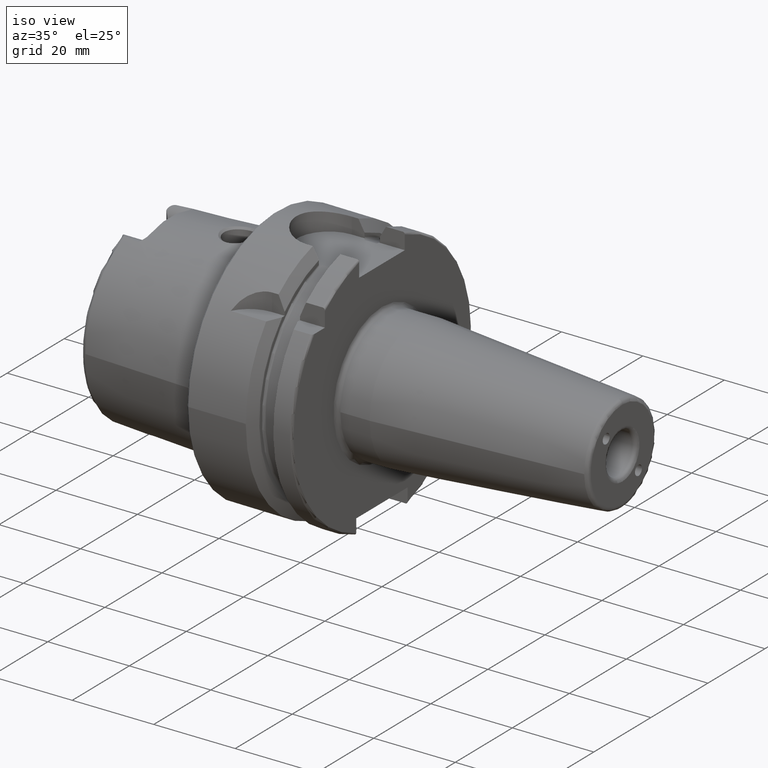
[diagram: clean part render]
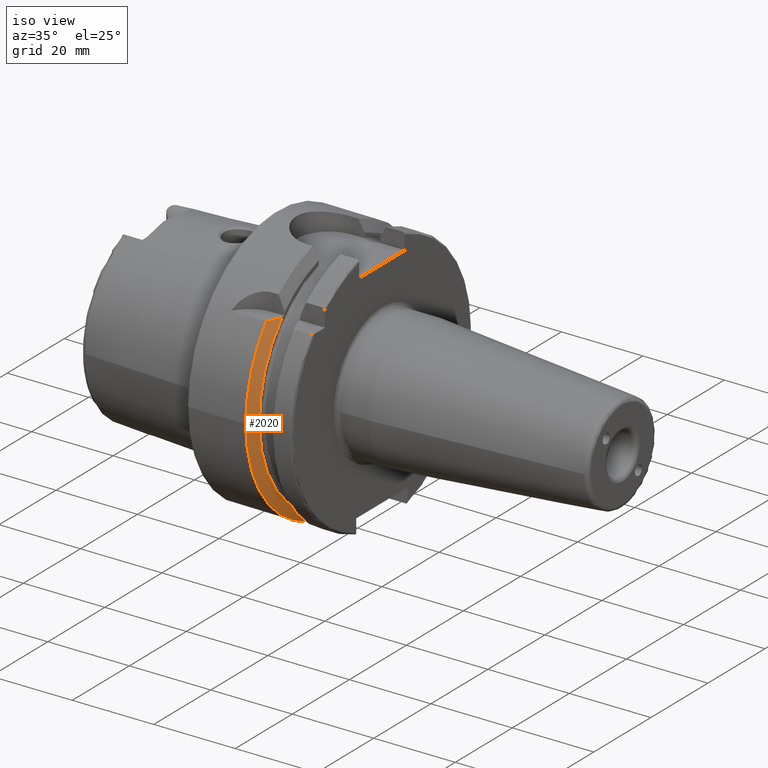
[diagram: same view with one face highlighted and labeled with its STEP entity id]
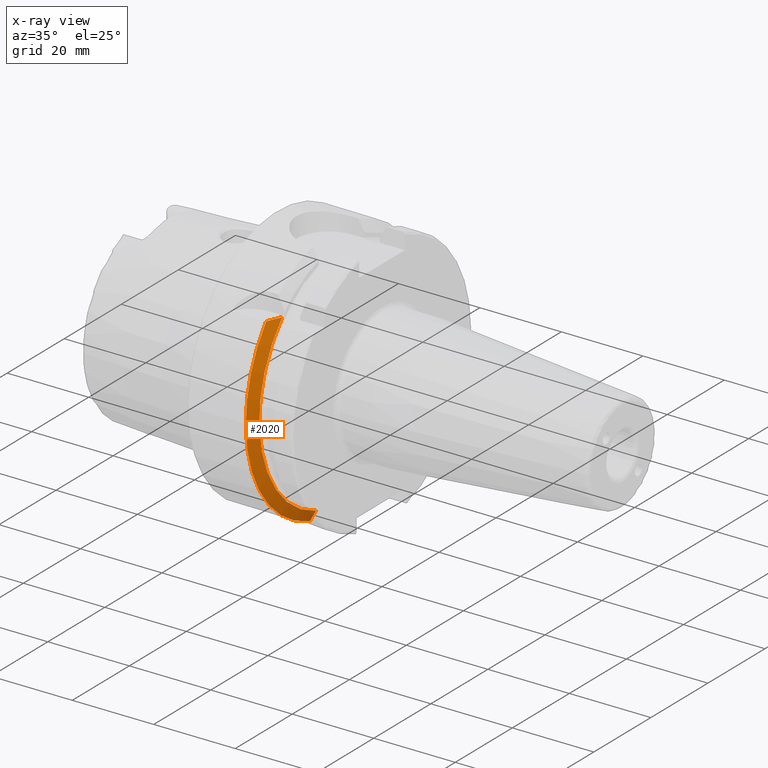
[diagram: x-ray of the same camera — body ghosted, the highlighted face saturated]
A machine part, iso view. The second image highlights one B-rep face of the part: STEP entity #2020.
The next image is the same camera in x-ray: the body ghosted, the highlighted face saturated — about 3% of this face is hidden behind the body in this view.
In plain terms, the highlighted conical surface has half-angle 60 deg.
Its self-contained STEP definition (entity closure, byte-faithful):
#18=(
BOUNDED_CURVE()
B_SPLINE_CURVE(2,(#3860,#3861,#3862),.UNSPECIFIED.,.F.,.F.)
B_SPLINE_CURVE_WITH_KNOTS((3,3),(0.,0.378858277140998),.UNSPECIFIED.)
CURVE()
GEOMETRIC_REPRESENTATION_ITEM()
RATIONAL_B_SPLINE_CURVE((1.,1.00166199353848,1.))
REPRESENTATION_ITEM('')
);
#21=(
BOUNDED_CURVE()
B_SPLINE_CURVE(2,(#3920,#3921,#3922),.UNSPECIFIED.,.F.,.F.)
B_SPLINE_CURVE_WITH_KNOTS((3,3),(0.,0.311314369989023),.UNSPECIFIED.)
CURVE()
GEOMETRIC_REPRESENTATION_ITEM()
RATIONAL_B_SPLINE_CURVE((1.,1.00102053193494,1.))
REPRESENTATION_ITEM('')
);
#257=FACE_OUTER_BOUND('',#384,.T.);
#384=EDGE_LOOP('',(#1570,#1571,#1572,#1573,#1574));
#732=CIRCLE('',#2222,28.8975952641916);
#735=CIRCLE('',#2226,31.5);
#736=CIRCLE('',#2227,31.5);
#915=VERTEX_POINT('',#3852);
#918=VERTEX_POINT('',#3858);
#925=VERTEX_POINT('',#3906);
#929=VERTEX_POINT('',#3916);
#930=VERTEX_POINT('',#3918);
#1158=EDGE_CURVE('',#915,#918,#18,.T.);
#1168=EDGE_CURVE('',#915,#925,#732,.T.);
#1173=EDGE_CURVE('',#918,#929,#735,.T.);
#1174=EDGE_CURVE('',#929,#930,#736,.T.);
#1175=EDGE_CURVE('',#930,#925,#21,.T.);
#1570=ORIENTED_EDGE('',*,*,#1158,.T.);
#1571=ORIENTED_EDGE('',*,*,#1173,.T.);
#1572=ORIENTED_EDGE('',*,*,#1174,.T.);
#1573=ORIENTED_EDGE('',*,*,#1175,.T.);
#1574=ORIENTED_EDGE('',*,*,#1168,.F.);
#1964=CONICAL_SURFACE('',#2225,30.1987976320958,1.0471975511966);
#2020=ADVANCED_FACE('',(#257),#1964,.T.);
#2222=AXIS2_PLACEMENT_3D('',#3907,#2638,#2639);
#2225=AXIS2_PLACEMENT_3D('',#3915,#2646,#2647);
#2226=AXIS2_PLACEMENT_3D('',#3917,#2648,#2649);
#2227=AXIS2_PLACEMENT_3D('',#3919,#2650,#2651);
#2638=DIRECTION('center_axis',(1.,0.,0.));
#2639=DIRECTION('ref_axis',(0.,0.,-1.));
#2646=DIRECTION('center_axis',(-1.,0.,0.));
#2647=DIRECTION('ref_axis',(0.,-0.966819045705046,-0.255462194584608));
#2648=DIRECTION('center_axis',(1.,0.,0.));
#2649=DIRECTION('ref_axis',(0.,0.,-1.));
#2650=DIRECTION('center_axis',(1.,0.,0.));
#2651=DIRECTION('ref_axis',(0.,0.,-1.));
#3852=CARTESIAN_POINT('',(16.125,-20.8583559288126,20.));
#3858=CARTESIAN_POINT('',(14.6225009252407,-24.3361870472759,20.));
#3860=CARTESIAN_POINT('Ctrl Pts',(16.125,-20.8583559288126,20.));
#3861=CARTESIAN_POINT('Ctrl Pts',(15.4315609602333,-22.5223452916163,20.));
#3862=CARTESIAN_POINT('Ctrl Pts',(14.6225009252407,-24.3361870472759,20.));
#3906=CARTESIAN_POINT('',(16.125,-9.,-27.4603534582684));
#3907=CARTESIAN_POINT('Origin',(16.125,0.,0.));
#3915=CARTESIAN_POINT('Origin',(15.3737504626203,0.,0.));
#3916=CARTESIAN_POINT('',(14.6225009252407,-31.5,-3.85763741731416E-15));
#3917=CARTESIAN_POINT('Origin',(14.6225009252407,0.,0.));
#3918=CARTESIAN_POINT('',(14.6225009252407,-9.,-30.1869176962472));
#3919=CARTESIAN_POINT('Origin',(14.6225009252407,0.,0.));
#3920=CARTESIAN_POINT('Ctrl Pts',(14.6225009252407,-9.,-30.1869176962472));
#3921=CARTESIAN_POINT('Ctrl Pts',(15.4092825889741,-9.,-28.7648946319013));
#3922=CARTESIAN_POINT('Ctrl Pts',(16.125,-9.,-27.4603534582684));